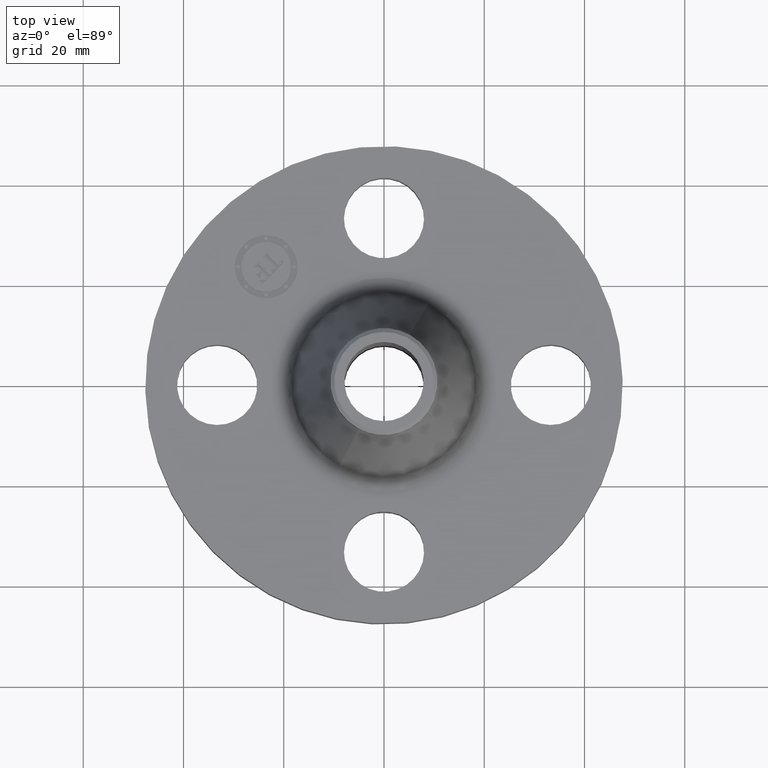
[diagram: clean part render]
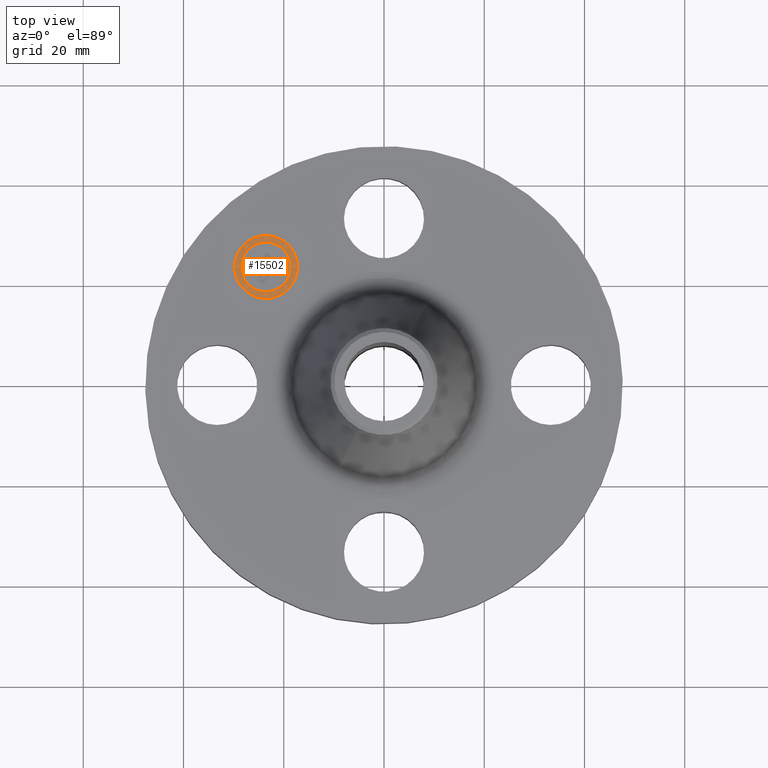
[diagram: same view with one face highlighted and labeled with its STEP entity id]
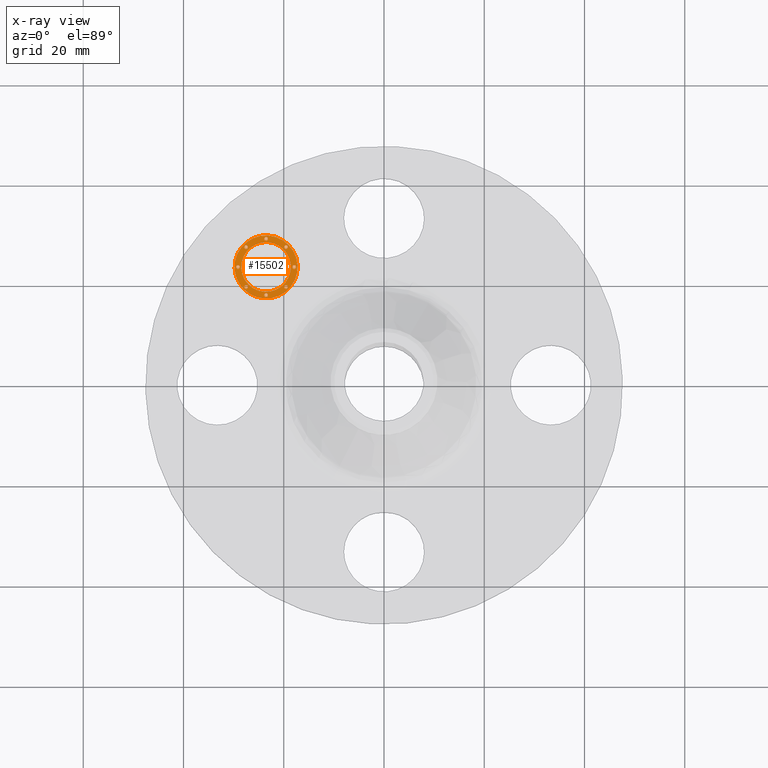
[diagram: x-ray of the same camera — body ghosted, the highlighted face saturated]
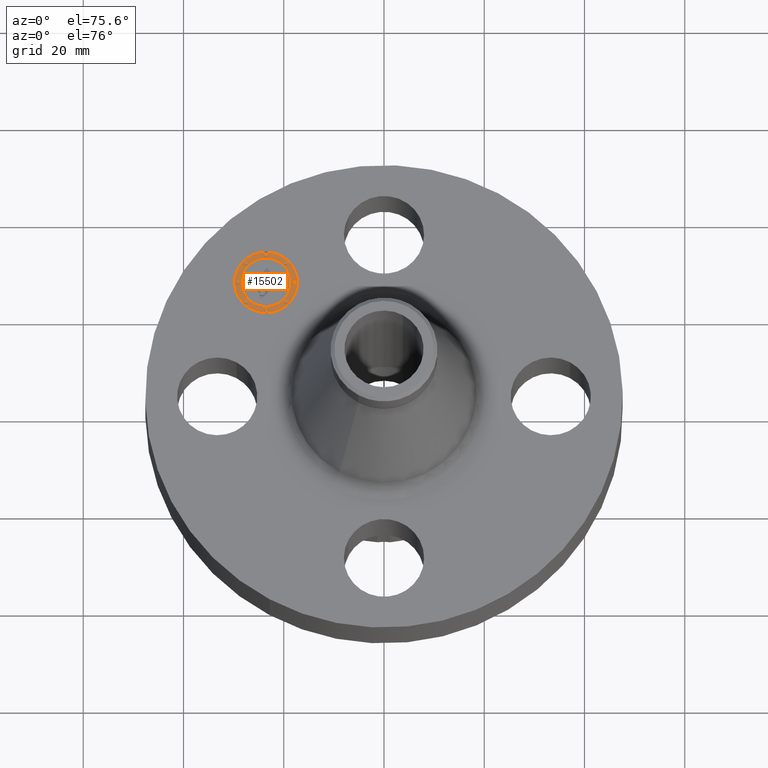
[diagram: same view with one face highlighted and labeled with its STEP entity id]
A machine part, top view. The second image highlights one B-rep face of the part: STEP entity #15502.
The next image is the same camera in x-ray: the body ghosted, the highlighted face saturated — about 0% of this face is hidden behind the body in this view.
A second angle (auxiliary view) of the same face is appended — the face is thin or edge-on in the first view.
In plain terms, the highlighted planar face has unit normal (0, -0, 1).
Its self-contained STEP definition (entity closure, byte-faithful):
#4153=AXIS2_PLACEMENT_3D('Plane Axis2P3D',#4150,#4151,#4152) ;
#15324=AXIS2_PLACEMENT_3D('Circle Axis2P3D',#15322,#15323,$) ;
#15333=AXIS2_PLACEMENT_3D('Circle Axis2P3D',#15331,#15332,$) ;
#15342=AXIS2_PLACEMENT_3D('Circle Axis2P3D',#15340,#15341,$) ;
#15351=AXIS2_PLACEMENT_3D('Circle Axis2P3D',#15349,#15350,$) ;
#15360=AXIS2_PLACEMENT_3D('Circle Axis2P3D',#15358,#15359,$) ;
#15369=AXIS2_PLACEMENT_3D('Circle Axis2P3D',#15367,#15368,$) ;
#15378=AXIS2_PLACEMENT_3D('Circle Axis2P3D',#15376,#15377,$) ;
#15387=AXIS2_PLACEMENT_3D('Circle Axis2P3D',#15385,#15386,$) ;
#15396=AXIS2_PLACEMENT_3D('Circle Axis2P3D',#15394,#15395,$) ;
#15405=AXIS2_PLACEMENT_3D('Circle Axis2P3D',#15403,#15404,$) ;
#15414=AXIS2_PLACEMENT_3D('Circle Axis2P3D',#15412,#15413,$) ;
#15423=AXIS2_PLACEMENT_3D('Circle Axis2P3D',#15421,#15422,$) ;
#15432=AXIS2_PLACEMENT_3D('Circle Axis2P3D',#15430,#15431,$) ;
#15441=AXIS2_PLACEMENT_3D('Circle Axis2P3D',#15439,#15440,$) ;
#15450=AXIS2_PLACEMENT_3D('Circle Axis2P3D',#15448,#15449,$) ;
#15459=AXIS2_PLACEMENT_3D('Circle Axis2P3D',#15457,#15458,$) ;
#15468=AXIS2_PLACEMENT_3D('Circle Axis2P3D',#15466,#15467,$) ;
#15477=AXIS2_PLACEMENT_3D('Circle Axis2P3D',#15475,#15476,$) ;
#15486=AXIS2_PLACEMENT_3D('Circle Axis2P3D',#15484,#15485,$) ;
#15495=AXIS2_PLACEMENT_3D('Circle Axis2P3D',#15493,#15494,$) ;
#4150=CARTESIAN_POINT('Axis2P3D Location',(0.,0.,0.485000000002)) ;
#15322=CARTESIAN_POINT('Axis2P3D Location',(-0.926309883358,0.926309883358,0.485000000002)) ;
#15326=CARTESIAN_POINT('Vertex',(-1.1013188117,0.751300955014,0.485000000002)) ;
#15328=CARTESIAN_POINT('Vertex',(-0.751300955014,1.1013188117,0.485000000002)) ;
#15331=CARTESIAN_POINT('Axis2P3D Location',(-0.926309883358,0.926309883358,0.485000000002)) ;
#15340=CARTESIAN_POINT('Axis2P3D Location',(-0.926309883358,0.926309883358,0.485000000002)) ;
#15344=CARTESIAN_POINT('Vertex',(-0.788424061026,1.06419570569,0.485000000002)) ;
#15346=CARTESIAN_POINT('Vertex',(-1.06419570569,0.788424061026,0.485000000002)) ;
#15349=CARTESIAN_POINT('Axis2P3D Location',(-0.926309883358,0.926309883358,0.485000000002)) ;
#15358=CARTESIAN_POINT('Axis2P3D Location',(-0.76986250802,0.76986250802,0.485000000002)) ;
#15362=CARTESIAN_POINT('Vertex',(-0.759255906302,0.780469109738,0.485000000002)) ;
#15364=CARTESIAN_POINT('Vertex',(-0.780469109738,0.759255906302,0.485000000002)) ;
#15367=CARTESIAN_POINT('Axis2P3D Location',(-0.76986250802,0.76986250802,0.485000000002)) ;
#15376=CARTESIAN_POINT('Axis2P3D Location',(-1.0827572587,0.76986250802,0.485000000002)) ;
#15380=CARTESIAN_POINT('Vertex',(-1.07215065698,0.780469109738,0.485000000002)) ;
#15382=CARTESIAN_POINT('Vertex',(-1.09336386041,0.759255906302,0.485000000002)) ;
#15385=CARTESIAN_POINT('Axis2P3D Location',(-1.0827572587,0.76986250802,0.485000000002)) ;
#15394=CARTESIAN_POINT('Axis2P3D Location',(-0.926309883358,0.705059883357,0.485000000002)) ;
#15398=CARTESIAN_POINT('Vertex',(-0.91570328164,0.715666485075,0.485000000002)) ;
#15400=CARTESIAN_POINT('Vertex',(-0.936916485076,0.694453281639,0.485000000002)) ;
#15403=CARTESIAN_POINT('Axis2P3D Location',(-0.926309883358,0.705059883357,0.485000000002)) ;
#15412=CARTESIAN_POINT('Axis2P3D Location',(-1.0827572587,1.0827572587,0.485000000002)) ;
#15416=CARTESIAN_POINT('Vertex',(-1.07215065698,1.09336386041,0.485000000002)) ;
#15418=CARTESIAN_POINT('Vertex',(-1.09336386041,1.07215065698,0.485000000002)) ;
#15421=CARTESIAN_POINT('Axis2P3D Location',(-1.0827572587,1.0827572587,0.485000000002)) ;
#15430=CARTESIAN_POINT('Axis2P3D Location',(-1.14755988336,0.926309883358,0.485000000002)) ;
#15434=CARTESIAN_POINT('Vertex',(-1.13695328164,0.936916485076,0.485000000002)) ;
#15436=CARTESIAN_POINT('Vertex',(-1.15816648508,0.91570328164,0.485000000002)) ;
#15439=CARTESIAN_POINT('Axis2P3D Location',(-1.14755988336,0.926309883358,0.485000000002)) ;
#15448=CARTESIAN_POINT('Axis2P3D Location',(-0.76986250802,1.0827572587,0.485000000002)) ;
#15452=CARTESIAN_POINT('Vertex',(-0.780469109738,1.07215065698,0.485000000002)) ;
#15454=CARTESIAN_POINT('Vertex',(-0.759255906302,1.09336386041,0.485000000002)) ;
#15457=CARTESIAN_POINT('Axis2P3D Location',(-0.76986250802,1.0827572587,0.485000000002)) ;
#15466=CARTESIAN_POINT('Axis2P3D Location',(-0.705059883357,0.926309883358,0.485000000002)) ;
#15470=CARTESIAN_POINT('Vertex',(-0.715666485075,0.91570328164,0.485000000002)) ;
#15472=CARTESIAN_POINT('Vertex',(-0.694453281639,0.936916485076,0.485000000002)) ;
#15475=CARTESIAN_POINT('Axis2P3D Location',(-0.705059883357,0.926309883358,0.485000000002)) ;
#15484=CARTESIAN_POINT('Axis2P3D Location',(-0.926309883358,1.14755988336,0.485000000002)) ;
#15488=CARTESIAN_POINT('Vertex',(-0.936916485076,1.13695328164,0.485000000002)) ;
#15490=CARTESIAN_POINT('Vertex',(-0.91570328164,1.15816648508,0.485000000002)) ;
#15493=CARTESIAN_POINT('Axis2P3D Location',(-0.926309883358,1.14755988336,0.485000000002)) ;
#4151=DIRECTION('Axis2P3D Direction',(0.,-0.,0.0393700787402)) ;
#4152=DIRECTION('Axis2P3D XDirection',(0.027838849653,0.027838849653,0.)) ;
#15323=DIRECTION('Axis2P3D Direction',(0.,-0.,0.0393700787402)) ;
#15332=DIRECTION('Axis2P3D Direction',(0.,-0.,0.0393700787402)) ;
#15341=DIRECTION('Axis2P3D Direction',(0.,-0.,0.0393700787402)) ;
#15350=DIRECTION('Axis2P3D Direction',(0.,-0.,0.0393700787402)) ;
#15359=DIRECTION('Axis2P3D Direction',(0.,-0.,0.0393700787402)) ;
#15368=DIRECTION('Axis2P3D Direction',(0.,-0.,0.0393700787402)) ;
#15377=DIRECTION('Axis2P3D Direction',(0.,-0.,0.0393700787402)) ;
#15386=DIRECTION('Axis2P3D Direction',(0.,-0.,0.0393700787402)) ;
#15395=DIRECTION('Axis2P3D Direction',(0.,-0.,0.0393700787402)) ;
#15404=DIRECTION('Axis2P3D Direction',(0.,-0.,0.0393700787402)) ;
#15413=DIRECTION('Axis2P3D Direction',(0.,-0.,0.0393700787402)) ;
#15422=DIRECTION('Axis2P3D Direction',(0.,-0.,0.0393700787402)) ;
#15431=DIRECTION('Axis2P3D Direction',(0.,-0.,0.0393700787402)) ;
#15440=DIRECTION('Axis2P3D Direction',(0.,-0.,0.0393700787402)) ;
#15449=DIRECTION('Axis2P3D Direction',(0.,-0.,0.0393700787402)) ;
#15458=DIRECTION('Axis2P3D Direction',(0.,-0.,0.0393700787402)) ;
#15467=DIRECTION('Axis2P3D Direction',(0.,-0.,0.0393700787402)) ;
#15476=DIRECTION('Axis2P3D Direction',(0.,-0.,0.0393700787402)) ;
#15485=DIRECTION('Axis2P3D Direction',(0.,-0.,0.0393700787402)) ;
#15494=DIRECTION('Axis2P3D Direction',(0.,-0.,0.0393700787402)) ;
#15337=ORIENTED_EDGE('',*,*,#15330,.T.) ;
#15338=ORIENTED_EDGE('',*,*,#15335,.T.) ;
#15355=ORIENTED_EDGE('',*,*,#15348,.F.) ;
#15356=ORIENTED_EDGE('',*,*,#15353,.F.) ;
#15373=ORIENTED_EDGE('',*,*,#15366,.F.) ;
#15374=ORIENTED_EDGE('',*,*,#15371,.F.) ;
#15391=ORIENTED_EDGE('',*,*,#15384,.F.) ;
#15392=ORIENTED_EDGE('',*,*,#15389,.F.) ;
#15409=ORIENTED_EDGE('',*,*,#15402,.F.) ;
#15410=ORIENTED_EDGE('',*,*,#15407,.F.) ;
#15427=ORIENTED_EDGE('',*,*,#15420,.F.) ;
#15428=ORIENTED_EDGE('',*,*,#15425,.F.) ;
#15445=ORIENTED_EDGE('',*,*,#15438,.F.) ;
#15446=ORIENTED_EDGE('',*,*,#15443,.F.) ;
#15463=ORIENTED_EDGE('',*,*,#15456,.F.) ;
#15464=ORIENTED_EDGE('',*,*,#15461,.F.) ;
#15481=ORIENTED_EDGE('',*,*,#15474,.F.) ;
#15482=ORIENTED_EDGE('',*,*,#15479,.F.) ;
#15499=ORIENTED_EDGE('',*,*,#15492,.F.) ;
#15500=ORIENTED_EDGE('',*,*,#15497,.F.) ;
#15357=FACE_BOUND('',#15354,.T.) ;
#15375=FACE_BOUND('',#15372,.T.) ;
#15393=FACE_BOUND('',#15390,.T.) ;
#15411=FACE_BOUND('',#15408,.T.) ;
#15429=FACE_BOUND('',#15426,.T.) ;
#15447=FACE_BOUND('',#15444,.T.) ;
#15465=FACE_BOUND('',#15462,.T.) ;
#15483=FACE_BOUND('',#15480,.T.) ;
#15501=FACE_BOUND('',#15498,.T.) ;
#15502=ADVANCED_FACE('PartBody',(#15339,#15357,#15375,#15393,#15411,#15429,#15447,#15465,#15483,#15501),#4154,.T.) ;
#15325=CIRCLE('generated circle',#15324,0.247500000001) ;
#15334=CIRCLE('generated circle',#15333,0.247500000001) ;
#15343=CIRCLE('generated circle',#15342,0.195000000001) ;
#15352=CIRCLE('generated circle',#15351,0.195000000001) ;
#15361=CIRCLE('generated circle',#15360,0.0150000000001) ;
#15370=CIRCLE('generated circle',#15369,0.0150000000001) ;
#15379=CIRCLE('generated circle',#15378,0.0150000000001) ;
#15388=CIRCLE('generated circle',#15387,0.0150000000001) ;
#15397=CIRCLE('generated circle',#15396,0.0150000000001) ;
#15406=CIRCLE('generated circle',#15405,0.0150000000001) ;
#15415=CIRCLE('generated circle',#15414,0.0150000000001) ;
#15424=CIRCLE('generated circle',#15423,0.0150000000001) ;
#15433=CIRCLE('generated circle',#15432,0.0150000000001) ;
#15442=CIRCLE('generated circle',#15441,0.0150000000001) ;
#15451=CIRCLE('generated circle',#15450,0.0150000000001) ;
#15460=CIRCLE('generated circle',#15459,0.0150000000001) ;
#15469=CIRCLE('generated circle',#15468,0.0150000000001) ;
#15478=CIRCLE('generated circle',#15477,0.0150000000001) ;
#15487=CIRCLE('generated circle',#15486,0.0150000000001) ;
#15496=CIRCLE('generated circle',#15495,0.0150000000001) ;
#15330=EDGE_CURVE('',#15327,#15329,#15325,.T.) ;
#15335=EDGE_CURVE('',#15329,#15327,#15334,.T.) ;
#15348=EDGE_CURVE('',#15345,#15347,#15343,.T.) ;
#15353=EDGE_CURVE('',#15347,#15345,#15352,.T.) ;
#15366=EDGE_CURVE('',#15363,#15365,#15361,.T.) ;
#15371=EDGE_CURVE('',#15365,#15363,#15370,.T.) ;
#15384=EDGE_CURVE('',#15381,#15383,#15379,.T.) ;
#15389=EDGE_CURVE('',#15383,#15381,#15388,.T.) ;
#15402=EDGE_CURVE('',#15399,#15401,#15397,.T.) ;
#15407=EDGE_CURVE('',#15401,#15399,#15406,.T.) ;
#15420=EDGE_CURVE('',#15417,#15419,#15415,.T.) ;
#15425=EDGE_CURVE('',#15419,#15417,#15424,.T.) ;
#15438=EDGE_CURVE('',#15435,#15437,#15433,.T.) ;
#15443=EDGE_CURVE('',#15437,#15435,#15442,.T.) ;
#15456=EDGE_CURVE('',#15453,#15455,#15451,.T.) ;
#15461=EDGE_CURVE('',#15455,#15453,#15460,.T.) ;
#15474=EDGE_CURVE('',#15471,#15473,#15469,.T.) ;
#15479=EDGE_CURVE('',#15473,#15471,#15478,.T.) ;
#15492=EDGE_CURVE('',#15489,#15491,#15487,.T.) ;
#15497=EDGE_CURVE('',#15491,#15489,#15496,.T.) ;
#15336=EDGE_LOOP('',(#15337,#15338)) ;
#15354=EDGE_LOOP('',(#15355,#15356)) ;
#15372=EDGE_LOOP('',(#15373,#15374)) ;
#15390=EDGE_LOOP('',(#15391,#15392)) ;
#15408=EDGE_LOOP('',(#15409,#15410)) ;
#15426=EDGE_LOOP('',(#15427,#15428)) ;
#15444=EDGE_LOOP('',(#15445,#15446)) ;
#15462=EDGE_LOOP('',(#15463,#15464)) ;
#15480=EDGE_LOOP('',(#15481,#15482)) ;
#15498=EDGE_LOOP('',(#15499,#15500)) ;
#15339=FACE_OUTER_BOUND('',#15336,.T.) ;
#4154=PLANE('',#4153) ;
#15327=VERTEX_POINT('',#15326) ;
#15329=VERTEX_POINT('',#15328) ;
#15345=VERTEX_POINT('',#15344) ;
#15347=VERTEX_POINT('',#15346) ;
#15363=VERTEX_POINT('',#15362) ;
#15365=VERTEX_POINT('',#15364) ;
#15381=VERTEX_POINT('',#15380) ;
#15383=VERTEX_POINT('',#15382) ;
#15399=VERTEX_POINT('',#15398) ;
#15401=VERTEX_POINT('',#15400) ;
#15417=VERTEX_POINT('',#15416) ;
#15419=VERTEX_POINT('',#15418) ;
#15435=VERTEX_POINT('',#15434) ;
#15437=VERTEX_POINT('',#15436) ;
#15453=VERTEX_POINT('',#15452) ;
#15455=VERTEX_POINT('',#15454) ;
#15471=VERTEX_POINT('',#15470) ;
#15473=VERTEX_POINT('',#15472) ;
#15489=VERTEX_POINT('',#15488) ;
#15491=VERTEX_POINT('',#15490) ;